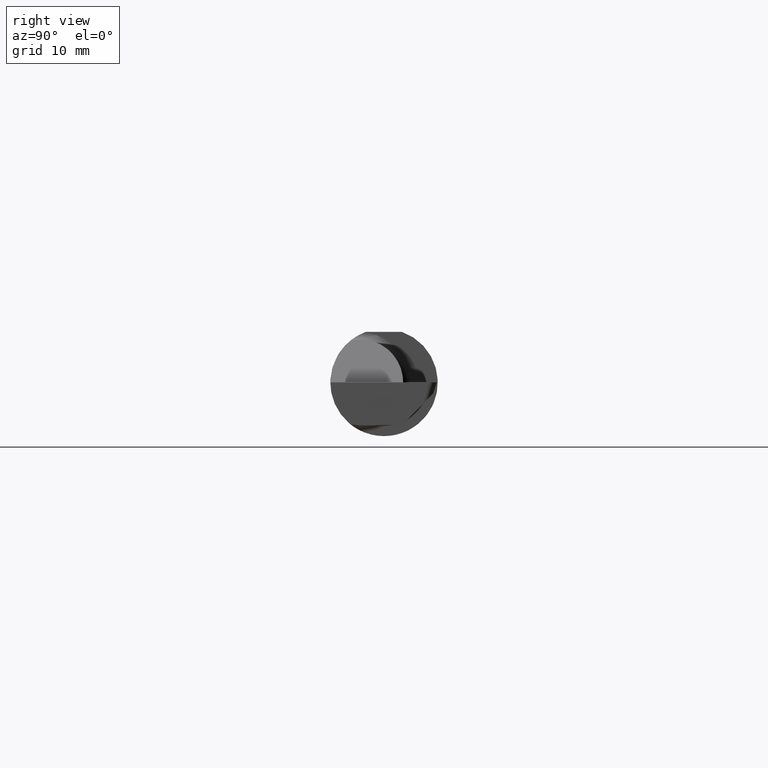
[diagram: clean part render]
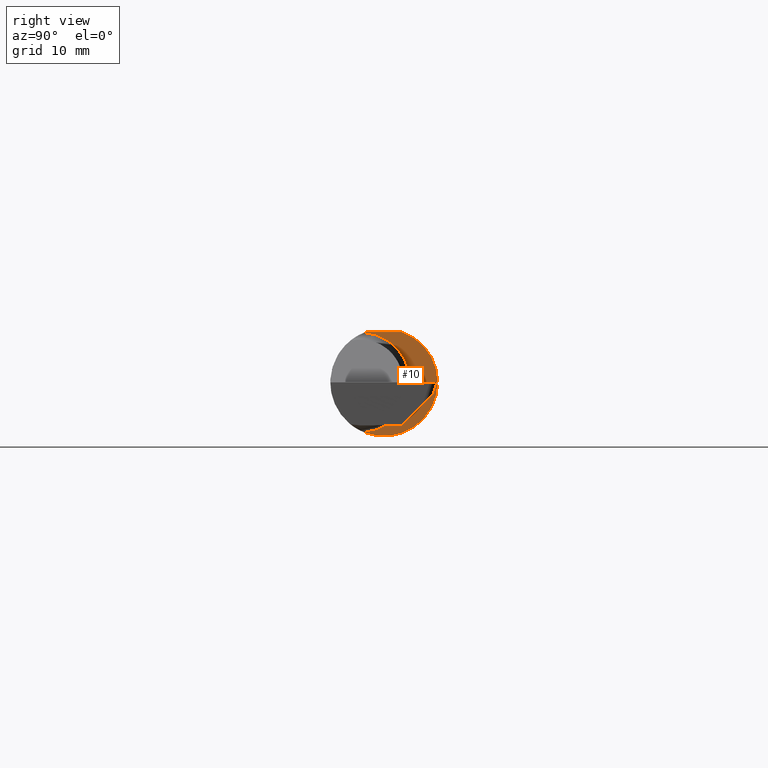
[diagram: same view with one face highlighted and labeled with its STEP entity id]
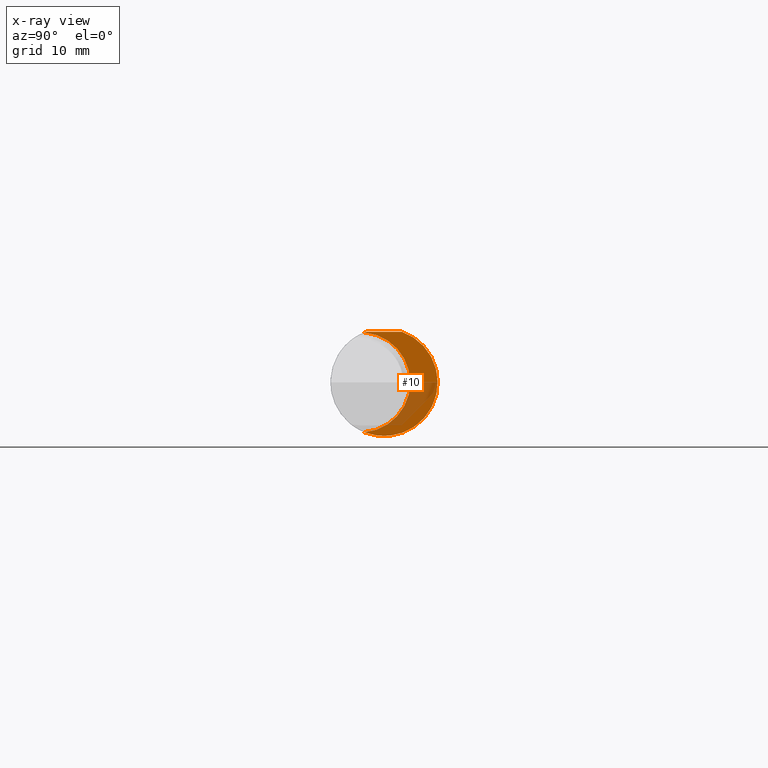
[diagram: x-ray of the same camera — body ghosted, the highlighted face saturated]
A machine part, right view. The second image highlights one B-rep face of the part: STEP entity #10.
The next image is the same camera in x-ray: the body ghosted, the highlighted face saturated — about 28% of this face is hidden behind the body in this view.
In plain terms, the highlighted planar face has unit normal (1, 0, 0).
Its self-contained STEP definition (entity closure, byte-faithful):
#10 = ADVANCED_FACE ( 'NONE', ( #439 ), #273, .T. ) ;
#12 = DIRECTION ( 'NONE',  ( -6.813485650141123812E-17, 1.000000000000000000, 0.000000000000000000 ) ) ;
#13 = LINE ( 'NONE', #669, #501 ) ;
#18 = EDGE_CURVE ( 'NONE', #521, #631, #63, .T. ) ;
#47 = AXIS2_PLACEMENT_3D ( 'NONE', #89, #454, #666 ) ;
#53 = ORIENTED_EDGE ( 'NONE', *, *, #518, .T. ) ;
#63 = CIRCLE ( 'NONE', #404, 0.1749999999999999889 ) ;
#76 = CARTESIAN_POINT ( 'NONE',  ( 1.199999999999999956, -0.06851976604679066440, -0.1743704796142198643 ) ) ;
#83 = EDGE_CURVE ( 'NONE', #698, #304, #13, .T. ) ;
#89 = CARTESIAN_POINT ( 'NONE',  ( 1.199999999999999956, 0.000000000000000000, 0.000000000000000000 ) ) ;
#109 = CARTESIAN_POINT ( 'NONE',  ( 1.199999999999999956, 0.06325108694718235836, 0.1763499999999999235 ) ) ;
#115 = DIRECTION ( 'NONE',  ( 0.000000000000000000, -1.000000000000000000, 0.000000000000000000 ) ) ;
#132 = DIRECTION ( 'NONE',  ( 0.000000000000000000, 1.000000000000000000, 0.000000000000000000 ) ) ;
#179 = CARTESIAN_POINT ( 'NONE',  ( 1.199999999999999956, -0.08335000000000007681, 0.000000000000000000 ) ) ;
#195 = AXIS2_PLACEMENT_3D ( 'NONE', #508, #442, #614 ) ;
#271 = EDGE_CURVE ( 'NONE', #631, #304, #690, .T. ) ;
#273 = PLANE ( 'NONE',  #195 ) ;
#291 = CARTESIAN_POINT ( 'NONE',  ( 1.199999999999999956, -0.06325108694718287183, 0.1763499999999999235 ) ) ;
#304 = VERTEX_POINT ( 'NONE', #109 ) ;
#404 = AXIS2_PLACEMENT_3D ( 'NONE', #179, #673, #115 ) ;
#429 = ORIENTED_EDGE ( 'NONE', *, *, #18, .T. ) ;
#439 = FACE_OUTER_BOUND ( 'NONE', #536, .T. ) ;
#442 = DIRECTION ( 'NONE',  ( 1.000000000000000000, 6.813485650141123812E-17, 0.000000000000000000 ) ) ;
#454 = DIRECTION ( 'NONE',  ( 1.000000000000000000, 6.813485650141123812E-17, 0.000000000000000000 ) ) ;
#488 = ORIENTED_EDGE ( 'NONE', *, *, #83, .F. ) ;
#501 = VECTOR ( 'NONE', #12, 39.37007874015748143 ) ;
#508 = CARTESIAN_POINT ( 'NONE',  ( 1.199999999999999956, 0.1873499999999998222, 0.000000000000000000 ) ) ;
#518 = EDGE_CURVE ( 'NONE', #698, #521, #559, .T. ) ;
#521 = VERTEX_POINT ( 'NONE', #686 ) ;
#536 = EDGE_LOOP ( 'NONE', ( #693, #488, #53, #429 ) ) ;
#559 = CIRCLE ( 'NONE', #613, 0.1873499999999999888 ) ;
#613 = AXIS2_PLACEMENT_3D ( 'NONE', #677, #696, #132 ) ;
#614 = DIRECTION ( 'NONE',  ( -6.813485650141123812E-17, 1.000000000000000000, 0.000000000000000000 ) ) ;
#631 = VERTEX_POINT ( 'NONE', #76 ) ;
#666 = DIRECTION ( 'NONE',  ( 0.000000000000000000, 1.000000000000000000, 0.000000000000000000 ) ) ;
#669 = CARTESIAN_POINT ( 'NONE',  ( 1.199999999999999956, 0.1873499999999997390, 0.1763499999999999235 ) ) ;
#673 = DIRECTION ( 'NONE',  ( -1.000000000000000000, -6.813485650141123812E-17, -0.000000000000000000 ) ) ;
#677 = CARTESIAN_POINT ( 'NONE',  ( 1.199999999999999956, 0.000000000000000000, 0.000000000000000000 ) ) ;
#686 = CARTESIAN_POINT ( 'NONE',  ( 1.199999999999999956, -0.06851976604679066440, 0.1743704796142198643 ) ) ;
#690 = CIRCLE ( 'NONE', #47, 0.1873499999999999888 ) ;
#693 = ORIENTED_EDGE ( 'NONE', *, *, #271, .T. ) ;
#696 = DIRECTION ( 'NONE',  ( 1.000000000000000000, 6.813485650141123812E-17, 0.000000000000000000 ) ) ;
#698 = VERTEX_POINT ( 'NONE', #291 ) ;